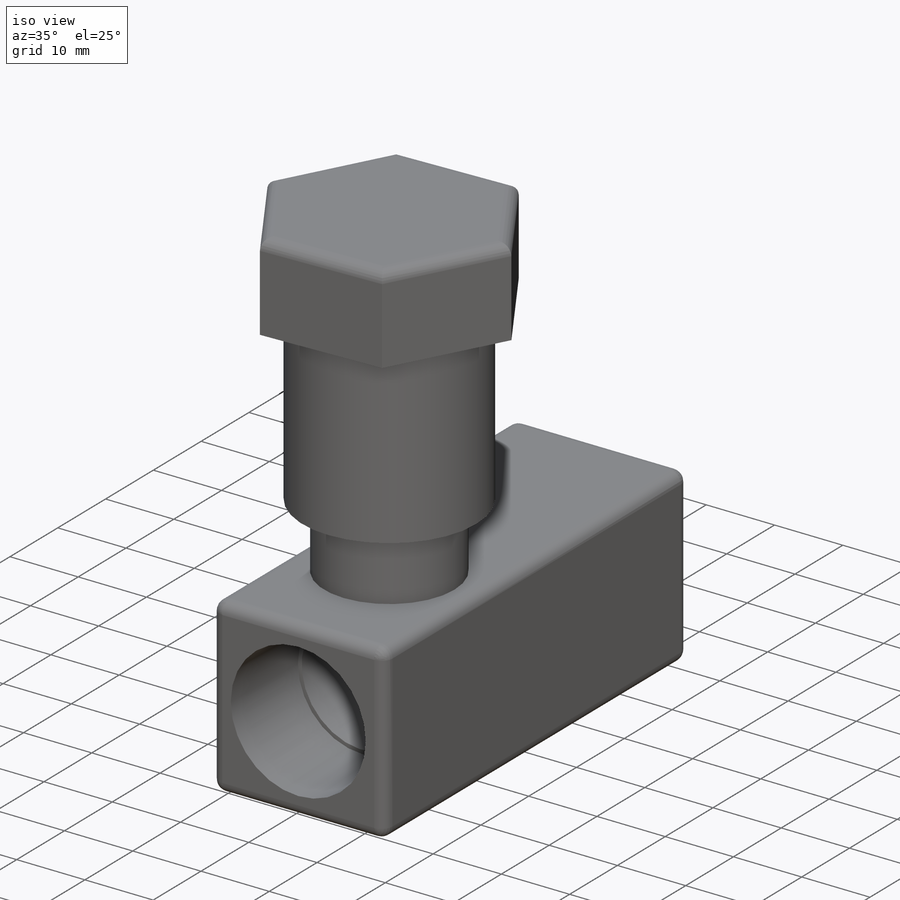
[diagram: iso view]
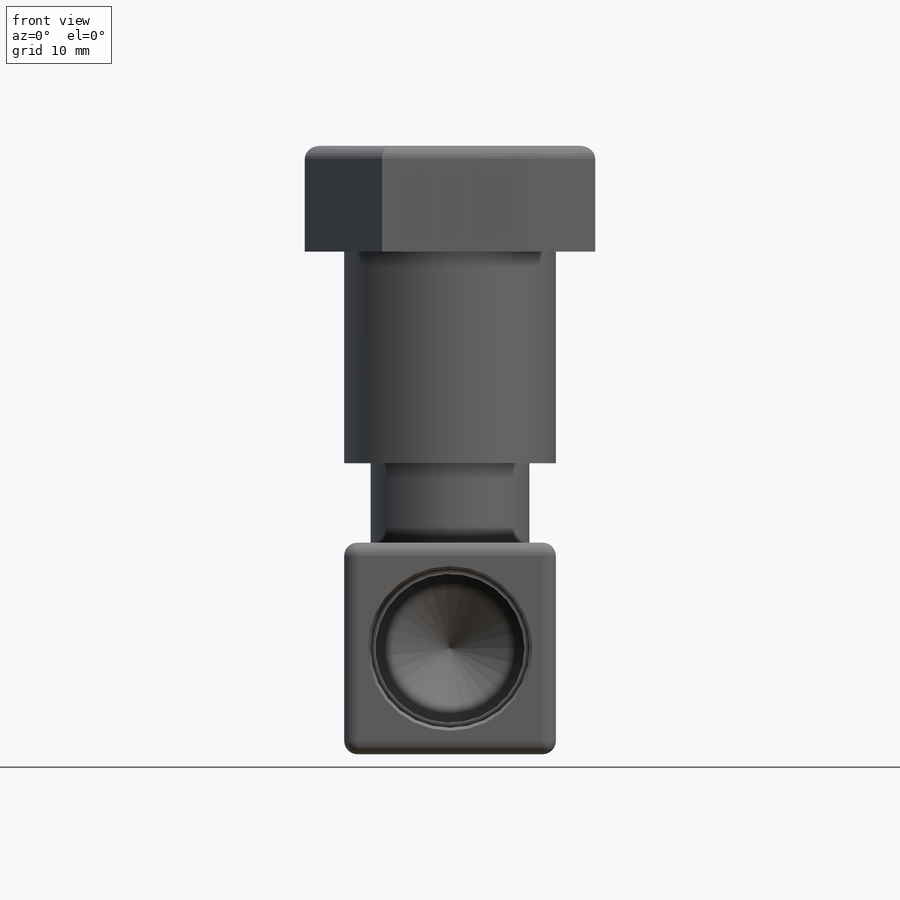
[diagram: front view]
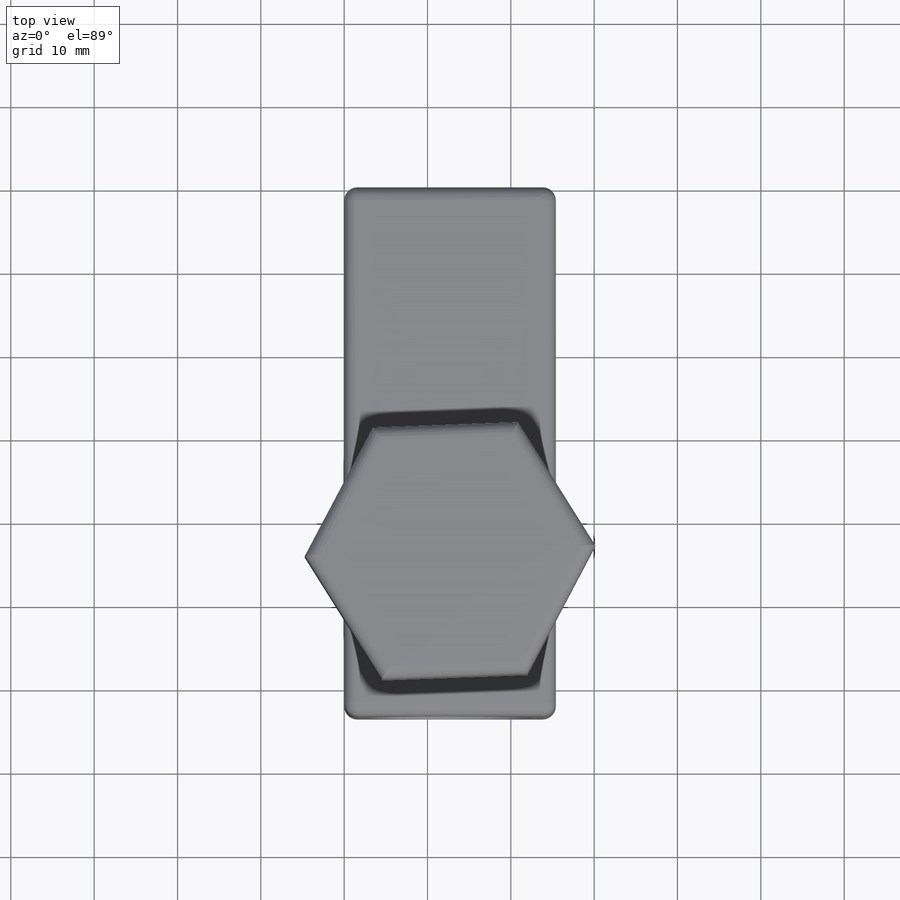
[diagram: top view]
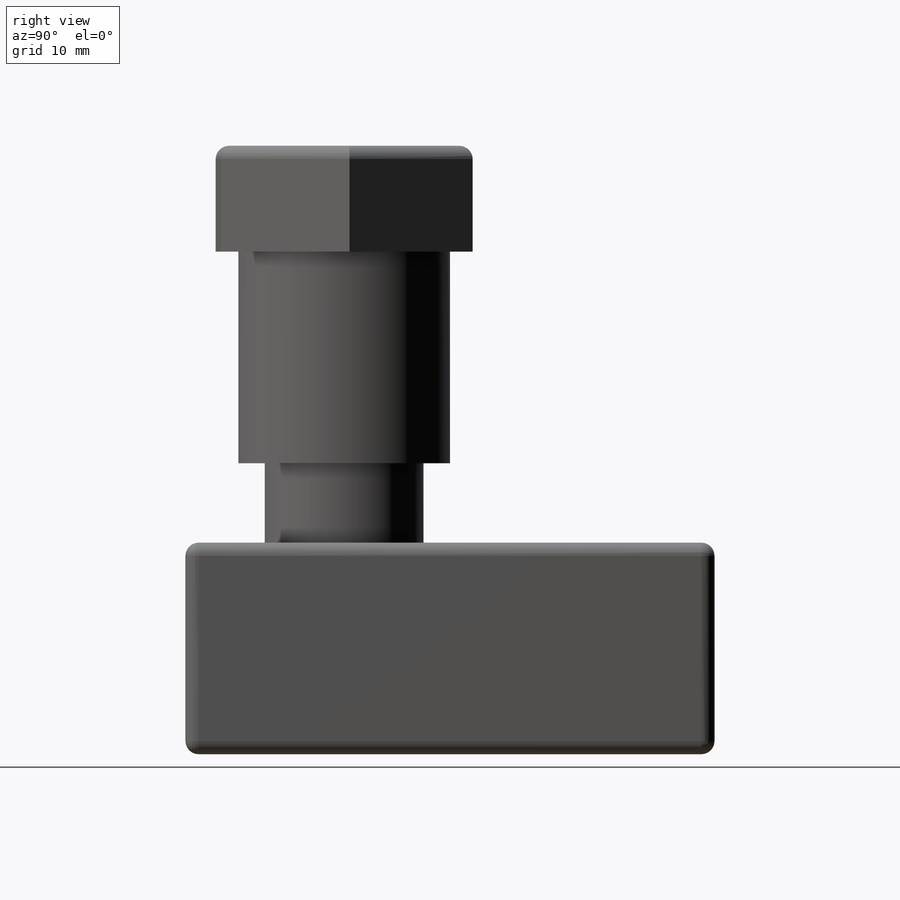
[diagram: right view]
SOLIDWORKS PART (.sldprt)
format: sldprt  version: not decoded by parser v0  size: 302,592 bytes
history: native  units: mm
features: sketch x8, extrude x4, hole x2, thread x2, material x1, fillet x1 (+11 scaffold rows collapsed)
feature tree (29):
  scaffold x11  (default folders/planes/origin — collapsed)
  material  "Material <not specified>"
  sketch  "Sketch1"  dims[D1=25.4mm D2=25.4mm]
  extrude  "Boss-Extrude1"  Depth=63.5mm
  hole  "1/2 NPT Tapped Hole1"  Diameter=17.8562mm Depth=22.606mm
  sketch  "Sketch3"
  sketch  "Sketch2"  dims[hole-wizard template sketch: 50 standard entries collapsed; hole parameters kept: c13.Tap Drill Dia.=17.8562mm c13.Tap Drill Depth=22.606mm c13.Thread Dia.=~19.765594mm c13.D4=~22.362017mm c13.Thread Angle=3.43deg c13.Thread Depth=13.462mm c13.D6=~25.48394mm c13.Drill Angle=118.0deg]
  thread  "Hole Thread2"  Diameter=13.462mm  [1 undecoded]
  sketch  "Sketch4"  dims[D2=19.05mm D1=19.05mm]
  extrude  "Boss-Extrude2"  Depth=9.525mm
  sketch  "Sketch5"  dims[D1=0.0mm D2=3.175mm]
  extrude  "Boss-Extrude3"  Depth=25.4mm
  sketch  "Sketch6"
  extrude  "Boss-Extrude4"  Depth=12.7mm
  hole  "1/2 NPT Tapped Hole2"  [1 undecoded]
  sketch  "Sketch8"
  thread  "Hole Thread3"  Diameter=13.462mm  [1 undecoded]
  sketch  "Sketch7"  dims[hole-wizard template sketch: 50 standard entries collapsed; hole parameters kept: c13.Tap Drill Dia.=17.8562mm c13.Tap Drill Depth=22.606mm c13.Thread Dia.=~19.765594mm c13.D4=~22.362017mm c13.Thread Angle=3.43deg c13.Thread Depth=13.462mm c13.D6=~25.48394mm c13.Drill Angle=118.0deg]
  fillet  "Fillet1"  Radius=1.5875mm
decode coverage: 13 of 17 modeling features carry decoded parameters
note: ~ marks probable driven/reference dimensions
note: 3 parameter values undecoded
note: suppression state not decoded; provenance and decode notes live in map.json
